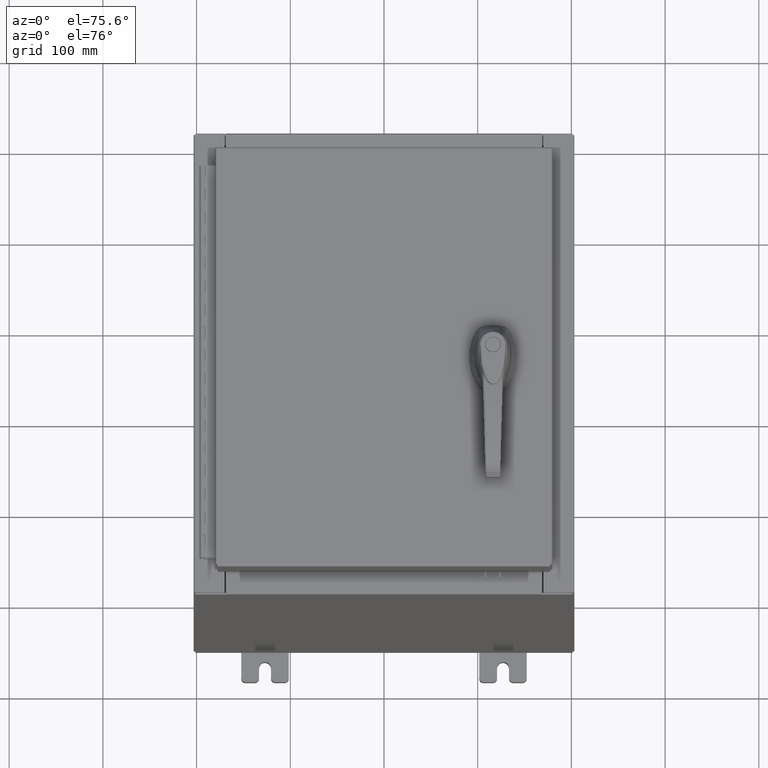
[diagram: clean part render]
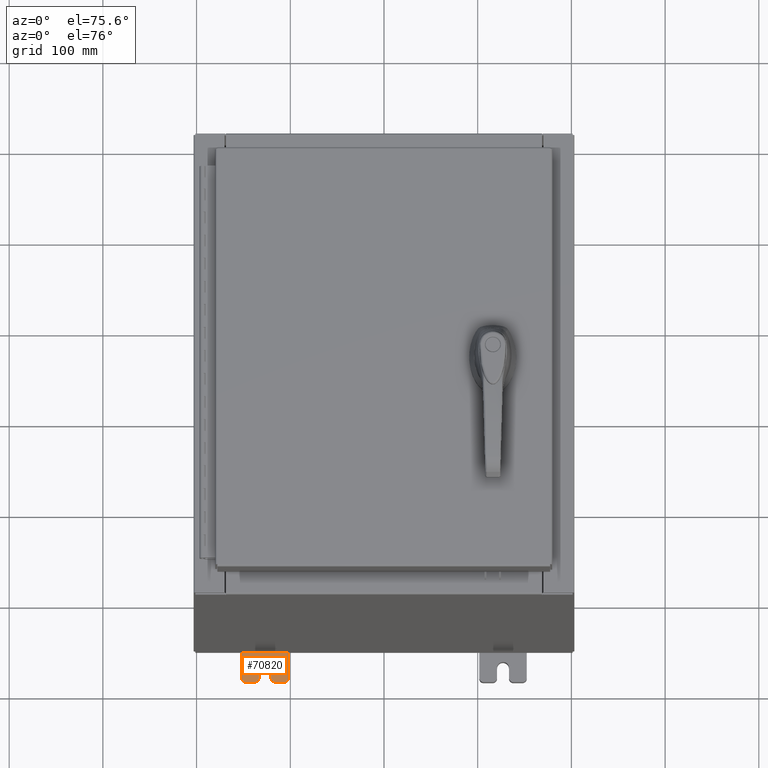
[diagram: same view with one face highlighted and labeled with its STEP entity id]
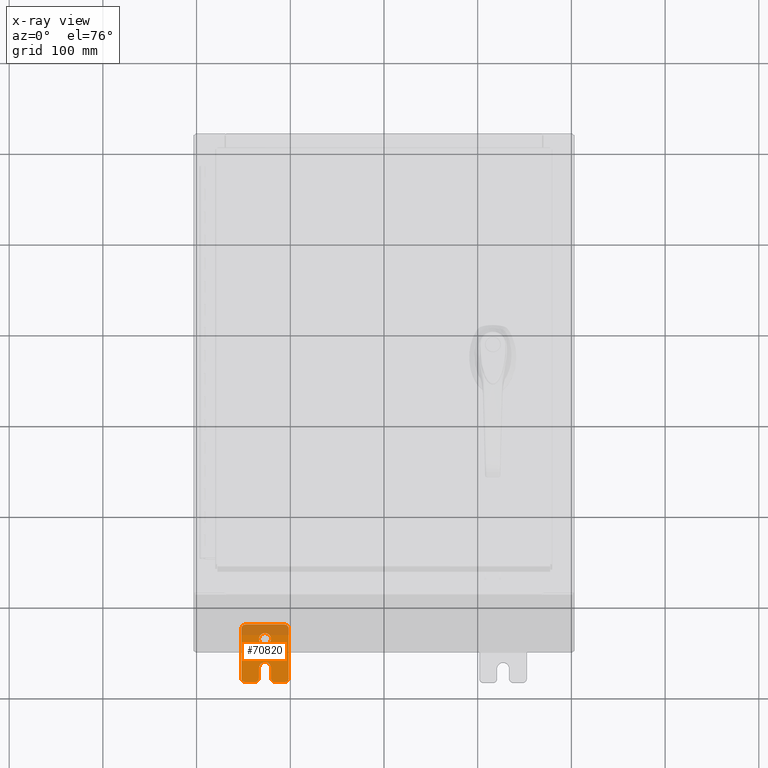
[diagram: x-ray of the same camera — body ghosted, the highlighted face saturated]
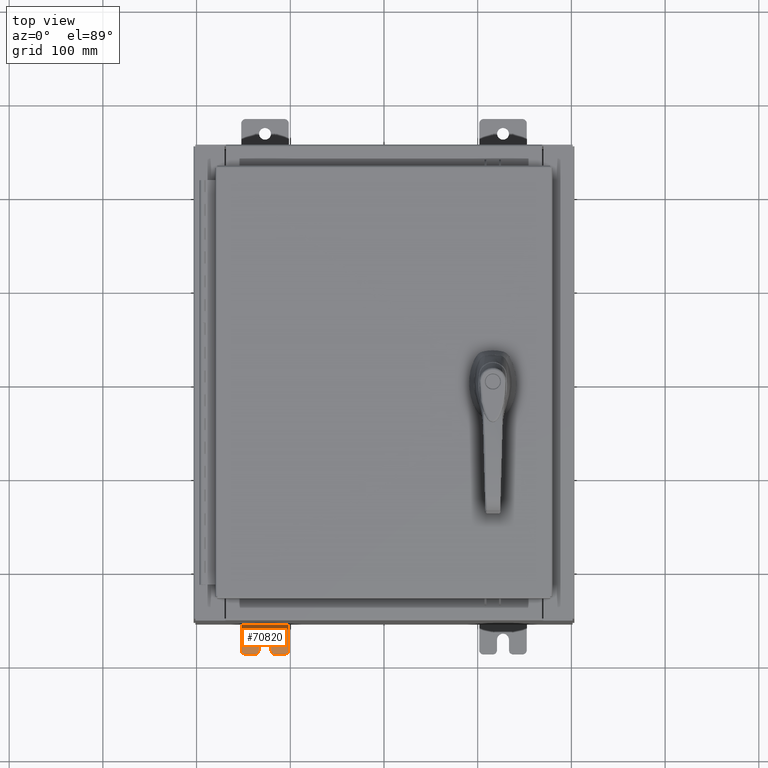
[diagram: same view with one face highlighted and labeled with its STEP entity id]
A machine part, auxiliary view. The second image highlights one B-rep face of the part: STEP entity #70820.
The next image is the same camera in x-ray: the body ghosted, the highlighted face saturated — about 20% of this face is hidden behind the body in this view.
A second angle (top view) of the same face is appended — the face is thin or edge-on in the first view.
In plain terms, the highlighted planar face has unit normal (0, 0, 1).
Its self-contained STEP definition (entity closure, byte-faithful):
#1039 = CARTESIAN_POINT ( 'NONE',  ( 0.0000000000000000000, -1.060000000000002100, 0.4400000000000016700 ) ) ;
#3020 = ORIENTED_EDGE ( 'NONE', *, *, #78802, .T. ) ;
#3696 = AXIS2_PLACEMENT_3D ( 'NONE', #87433, #36364, #96007 ) ;
#3768 = ORIENTED_EDGE ( 'NONE', *, *, #4987, .T. ) ;
#3808 = EDGE_CURVE ( 'NONE', #20745, #4893, #26907, .T. ) ;
#4068 = ORIENTED_EDGE ( 'NONE', *, *, #41762, .T. ) ;
#4342 = FACE_OUTER_BOUND ( 'NONE', #9734, .T. ) ;
#4583 = VERTEX_POINT ( 'NONE', #35247 ) ;
#4893 = VERTEX_POINT ( 'NONE', #58958 ) ;
#4987 = EDGE_CURVE ( 'NONE', #4583, #56472, #81415, .T. ) ;
#6508 = ORIENTED_EDGE ( 'NONE', *, *, #59576, .T. ) ;
#6839 = AXIS2_PLACEMENT_3D ( 'NONE', #1039, #60697, #9682 ) ;
#7004 = DIRECTION ( 'NONE',  ( 0.0000000000000000000, 0.0000000000000000000, -1.000000000000000000 ) ) ;
#8256 = EDGE_LOOP ( 'NONE', ( #89296, #68915 ) ) ;
#9054 = CARTESIAN_POINT ( 'NONE',  ( 0.0000000000000000000, 1.249999999999994700, -0.8100000000000092700 ) ) ;
#9682 = DIRECTION ( 'NONE',  ( 0.0000000000000000000, 0.0000000000000000000, -1.000000000000000000 ) ) ;
#9734 = EDGE_LOOP ( 'NONE', ( #20002, #89200, #44804, #30300, #6508, #33242, #85507, #38736, #3020, #83663, #103645, #3768, #108883, #4068 ) ) ;
#9806 = CARTESIAN_POINT ( 'NONE',  ( 0.0000000000000000000, -1.060000000000004100, -0.8100000000000050500 ) ) ;
#14124 = CARTESIAN_POINT ( 'NONE',  ( 4.780733988912460100E-016, -0.6249999999999993300, -0.2499999999999993900 ) ) ;
#14417 = CARTESIAN_POINT ( 'NONE',  ( 0.0000000000000000000, -1.250000000000005600, -1.000000000000006200 ) ) ;
#14798 = CIRCLE ( 'NONE', #47043, 0.1900000000000011100 ) ;
#17651 = EDGE_CURVE ( 'NONE', #72877, #72840, #43533, .T. ) ;
#17746 = CARTESIAN_POINT ( 'NONE',  ( 0.0000000000000000000, 1.249999999999997600, 0.9999999999999951200 ) ) ;
#18435 = DIRECTION ( 'NONE',  ( 0.0000000000000000000, 0.0000000000000000000, -1.000000000000000000 ) ) ;
#18784 = EDGE_CURVE ( 'NONE', #83313, #49658, #88765, .T. ) ;
#19538 = VECTOR ( 'NONE', #86620, 39.37007874015748100 ) ;
#20002 = ORIENTED_EDGE ( 'NONE', *, *, #29836, .T. ) ;
#20745 = VERTEX_POINT ( 'NONE', #75038 ) ;
#20774 = CARTESIAN_POINT ( 'NONE',  ( 0.0000000000000000000, 1.249999999999997300, 0.8099999999999935000 ) ) ;
#22625 = CARTESIAN_POINT ( 'NONE',  ( 3.910348609313009100E-016, 0.6249999999999992200, -0.2499999999999999200 ) ) ;
#24008 = CARTESIAN_POINT ( 'NONE',  ( 0.0000000000000000000, -0.6249999999999992200, 0.2500000000000005000 ) ) ;
#24141 = EDGE_CURVE ( 'NONE', #72840, #4583, #107209, .T. ) ;
#24787 = VERTEX_POINT ( 'NONE', #74710 ) ;
#24954 = CARTESIAN_POINT ( 'NONE',  ( 0.0000000000000000000, 1.059999999999993600, -0.8100000000000089400 ) ) ;
#25074 = DIRECTION ( 'NONE',  ( 1.000000000000000000, -0.0000000000000000000, -5.163192708025532000E-017 ) ) ;
#26907 = CIRCLE ( 'NONE', #61364, 0.1900000000000011100 ) ;
#27917 = EDGE_CURVE ( 'NONE', #108738, #97784, #98726, .T. ) ;
#29836 = EDGE_CURVE ( 'NONE', #24787, #20745, #38518, .T. ) ;
#29892 = AXIS2_PLACEMENT_3D ( 'NONE', #100700, #109311, #58170 ) ;
#30300 = ORIENTED_EDGE ( 'NONE', *, *, #67045, .T. ) ;
#31686 = DIRECTION ( 'NONE',  ( 6.556435184794182400E-016, 1.000000000000000000, 0.0000000000000000000 ) ) ;
#33242 = ORIENTED_EDGE ( 'NONE', *, *, #56276, .T. ) ;
#33519 = DIRECTION ( 'NONE',  ( 0.0000000000000000000, 0.0000000000000000000, -1.000000000000000000 ) ) ;
#34699 = CARTESIAN_POINT ( 'NONE',  ( 0.0000000000000000000, -1.250000000000002200, 0.9999999999999992200 ) ) ;
#35247 = CARTESIAN_POINT ( 'NONE',  ( 0.0000000000000000000, 1.059999999999993400, -1.000000000000010000 ) ) ;
#35589 = CARTESIAN_POINT ( 'NONE',  ( 0.0000000000000000000, -1.060000000000003400, -0.4400000000000005000 ) ) ;
#36364 = DIRECTION ( 'NONE',  ( 1.000000000000000000, -0.0000000000000000000, -5.163192708025532000E-017 ) ) ;
#36482 = VECTOR ( 'NONE', #48337, 39.37007874015748100 ) ;
#38518 = LINE ( 'NONE', #17746, #61151 ) ;
#38736 = ORIENTED_EDGE ( 'NONE', *, *, #86186, .T. ) ;
#41055 = PLANE ( 'NONE',  #29892 ) ;
#41725 = CARTESIAN_POINT ( 'NONE',  ( 0.0000000000000000000, 1.059999999999996300, 0.8099999999999938400 ) ) ;
#41762 = EDGE_CURVE ( 'NONE', #94328, #24787, #74423, .T. ) ;
#43262 = EDGE_CURVE ( 'NONE', #97784, #108738, #92951, .T. ) ;
#43533 = CIRCLE ( 'NONE', #54861, 0.1900000000000011100 ) ;
#43629 = AXIS2_PLACEMENT_3D ( 'NONE', #24954, #84567, #33519 ) ;
#44174 = DIRECTION ( 'NONE',  ( 0.0000000000000000000, 0.0000000000000000000, -1.000000000000000000 ) ) ;
#44804 = ORIENTED_EDGE ( 'NONE', *, *, #51923, .T. ) ;
#47043 = AXIS2_PLACEMENT_3D ( 'NONE', #35589, #95228, #44174 ) ;
#48337 = DIRECTION ( 'NONE',  ( 0.0000000000000000000, 1.000000000000000000, -1.639108796198558100E-015 ) ) ;
#48808 = CARTESIAN_POINT ( 'NONE',  ( 6.829619984160658000E-017, -1.250000000000003800, 0.2500000000000005000 ) ) ;
#49658 = VERTEX_POINT ( 'NONE', #87773 ) ;
#50047 = CARTESIAN_POINT ( 'NONE',  ( 4.780733988912460100E-016, -0.6249999999999993300, 5.858939755051854500E-017 ) ) ;
#50282 = DIRECTION ( 'NONE',  ( 0.0000000000000000000, 0.0000000000000000000, -1.000000000000000000 ) ) ;
#51923 = EDGE_CURVE ( 'NONE', #4893, #65295, #61498, .T. ) ;
#51989 = CARTESIAN_POINT ( 'NONE',  ( 0.0000000000000000000, -1.250000000000003100, 0.4400000000000020000 ) ) ;
#54861 = AXIS2_PLACEMENT_3D ( 'NONE', #9806, #69431, #18435 ) ;
#56134 = VECTOR ( 'NONE', #106029, 39.37007874015748100 ) ;
#56276 = EDGE_CURVE ( 'NONE', #100319, #83313, #63648, .T. ) ;
#56432 = AXIS2_PLACEMENT_3D ( 'NONE', #41725, #101406, #50282 ) ;
#56472 = VERTEX_POINT ( 'NONE', #9054 ) ;
#57004 = CARTESIAN_POINT ( 'NONE',  ( 4.780733988912460100E-016, -0.6249999999999993300, -0.2499999999999998600 ) ) ;
#58170 = DIRECTION ( 'NONE',  ( -0.0000000000000000000, 0.0000000000000000000, -1.000000000000000000 ) ) ;
#58626 = DIRECTION ( 'NONE',  ( -6.523827964459551700E-016, -1.000000000000000000, 0.0000000000000000000 ) ) ;
#58958 = CARTESIAN_POINT ( 'NONE',  ( 0.0000000000000000000, -1.250000000000002400, 0.8099999999999980500 ) ) ;
#59576 = EDGE_CURVE ( 'NONE', #96191, #100319, #104694, .T. ) ;
#60434 = CARTESIAN_POINT ( 'NONE',  ( 1.928684683526972300E-016, -1.060000000000002100, 0.2500000000000005000 ) ) ;
#60697 = DIRECTION ( 'NONE',  ( 1.000000000000000000, 0.0000000000000000000, -0.0000000000000000000 ) ) ;
#61151 = VECTOR ( 'NONE', #68721, 39.37007874015748100 ) ;
#61364 = AXIS2_PLACEMENT_3D ( 'NONE', #74661, #78158, #7004 ) ;
#61498 = LINE ( 'NONE', #97420, #56134 ) ;
#61541 = CARTESIAN_POINT ( 'NONE',  ( 4.168508244714285900E-016, 0.6249999999999992200, 0.2499999999999999200 ) ) ;
#62113 = VECTOR ( 'NONE', #68196, 39.37007874015748100 ) ;
#62694 = VERTEX_POINT ( 'NONE', #67522 ) ;
#63298 = CARTESIAN_POINT ( 'NONE',  ( 0.0000000000000000000, -1.060000000000004500, -1.000000000000006400 ) ) ;
#63648 = CIRCLE ( 'NONE', #80680, 0.2499999999999999200 ) ;
#65295 = VERTEX_POINT ( 'NONE', #51989 ) ;
#67045 = EDGE_CURVE ( 'NONE', #65295, #96191, #75490, .T. ) ;
#67522 = CARTESIAN_POINT ( 'NONE',  ( 0.0000000000000000000, -1.250000000000004700, -0.4400000000000002200 ) ) ;
#68196 = DIRECTION ( 'NONE',  ( 0.0000000000000000000, -1.639108796198553600E-015, -1.000000000000000000 ) ) ;
#68721 = DIRECTION ( 'NONE',  ( 0.0000000000000000000, -1.000000000000000000, 1.639108796198558100E-015 ) ) ;
#68915 = ORIENTED_EDGE ( 'NONE', *, *, #43262, .F. ) ;
#69431 = DIRECTION ( 'NONE',  ( 1.000000000000000000, 0.0000000000000000000, -0.0000000000000000000 ) ) ;
#70820 = ADVANCED_FACE ( 'NONE', ( #109810, #4342 ), #41055, .T. ) ;
#71898 = CARTESIAN_POINT ( 'NONE',  ( 0.0000000000000000000, -1.250000000000005300, -0.8100000000000047200 ) ) ;
#72840 = VERTEX_POINT ( 'NONE', #63298 ) ;
#72877 = VERTEX_POINT ( 'NONE', #71898 ) ;
#74423 = CIRCLE ( 'NONE', #56432, 0.1900000000000011100 ) ;
#74661 = CARTESIAN_POINT ( 'NONE',  ( 0.0000000000000000000, -1.060000000000001600, 0.8099999999999978300 ) ) ;
#74710 = CARTESIAN_POINT ( 'NONE',  ( 0.0000000000000000000, 1.059999999999996500, 0.9999999999999953400 ) ) ;
#75038 = CARTESIAN_POINT ( 'NONE',  ( 0.0000000000000000000, -1.060000000000001200, 0.9999999999999988900 ) ) ;
#75490 = CIRCLE ( 'NONE', #6839, 0.1900000000000011400 ) ;
#76105 = CARTESIAN_POINT ( 'NONE',  ( 4.039428427013647300E-016, 0.6249999999999992200, -9.783840404509077400E-018 ) ) ;
#78005 = CARTESIAN_POINT ( 'NONE',  ( 0.0000000000000000000, 1.249999999999994200, -1.000000000000010400 ) ) ;
#78041 = VECTOR ( 'NONE', #82350, 39.37007874015748100 ) ;
#78158 = DIRECTION ( 'NONE',  ( 1.000000000000000000, 0.0000000000000000000, -0.0000000000000000000 ) ) ;
#78802 = EDGE_CURVE ( 'NONE', #62694, #72877, #107559, .T. ) ;
#80680 = AXIS2_PLACEMENT_3D ( 'NONE', #50047, #109762, #58626 ) ;
#81415 = CIRCLE ( 'NONE', #43629, 0.1900000000000011100 ) ;
#82350 = DIRECTION ( 'NONE',  ( -6.556435184794182400E-016, -1.000000000000000000, -1.639108796198545600E-016 ) ) ;
#83313 = VERTEX_POINT ( 'NONE', #57004 ) ;
#83663 = ORIENTED_EDGE ( 'NONE', *, *, #17651, .T. ) ;
#84567 = DIRECTION ( 'NONE',  ( 1.000000000000000000, 0.0000000000000000000, -0.0000000000000000000 ) ) ;
#84675 = DIRECTION ( 'NONE',  ( -5.163192708025533800E-017, 0.0000000000000000000, -1.000000000000000000 ) ) ;
#85507 = ORIENTED_EDGE ( 'NONE', *, *, #18784, .T. ) ;
#86186 = EDGE_CURVE ( 'NONE', #49658, #62694, #14798, .T. ) ;
#86620 = DIRECTION ( 'NONE',  ( 0.0000000000000000000, 1.639108796198553600E-015, 1.000000000000000000 ) ) ;
#87433 = CARTESIAN_POINT ( 'NONE',  ( 4.039428427013647300E-016, 0.6249999999999992200, -9.783840404509077400E-018 ) ) ;
#87565 = LINE ( 'NONE', #78005, #19538 ) ;
#87773 = CARTESIAN_POINT ( 'NONE',  ( 1.928684683526964400E-016, -1.060000000000003400, -0.2499999999999994400 ) ) ;
#88765 = LINE ( 'NONE', #14124, #78041 ) ;
#89200 = ORIENTED_EDGE ( 'NONE', *, *, #3808, .T. ) ;
#89296 = ORIENTED_EDGE ( 'NONE', *, *, #27917, .F. ) ;
#91621 = AXIS2_PLACEMENT_3D ( 'NONE', #76105, #25074, #84675 ) ;
#92951 = CIRCLE ( 'NONE', #91621, 0.2499999999999999200 ) ;
#94328 = VERTEX_POINT ( 'NONE', #20774 ) ;
#95228 = DIRECTION ( 'NONE',  ( 1.000000000000000000, 0.0000000000000000000, -0.0000000000000000000 ) ) ;
#96007 = DIRECTION ( 'NONE',  ( -5.163192708025533800E-017, 0.0000000000000000000, -1.000000000000000000 ) ) ;
#96191 = VERTEX_POINT ( 'NONE', #60434 ) ;
#97420 = CARTESIAN_POINT ( 'NONE',  ( 0.0000000000000000000, -1.250000000000002200, 0.9999999999999992200 ) ) ;
#97784 = VERTEX_POINT ( 'NONE', #61541 ) ;
#98726 = CIRCLE ( 'NONE', #3696, 0.2499999999999999200 ) ;
#100319 = VERTEX_POINT ( 'NONE', #24008 ) ;
#100700 = CARTESIAN_POINT ( 'NONE',  ( 0.0000000000000000000, 0.0000000000000000000, 0.0000000000000000000 ) ) ;
#100927 = EDGE_CURVE ( 'NONE', #56472, #94328, #87565, .T. ) ;
#101406 = DIRECTION ( 'NONE',  ( 1.000000000000000000, 0.0000000000000000000, -0.0000000000000000000 ) ) ;
#102013 = VECTOR ( 'NONE', #31686, 39.37007874015748100 ) ;
#103645 = ORIENTED_EDGE ( 'NONE', *, *, #24141, .T. ) ;
#104694 = LINE ( 'NONE', #48808, #102013 ) ;
#106029 = DIRECTION ( 'NONE',  ( 0.0000000000000000000, -1.639108796198553600E-015, -1.000000000000000000 ) ) ;
#107209 = LINE ( 'NONE', #14417, #36482 ) ;
#107559 = LINE ( 'NONE', #34699, #62113 ) ;
#108738 = VERTEX_POINT ( 'NONE', #22625 ) ;
#108883 = ORIENTED_EDGE ( 'NONE', *, *, #100927, .T. ) ;
#109311 = DIRECTION ( 'NONE',  ( 1.000000000000000000, 0.0000000000000000000, -0.0000000000000000000 ) ) ;
#109762 = DIRECTION ( 'NONE',  ( -1.000000000000000000, 6.523827964459549700E-016, 5.163192708025532000E-017 ) ) ;
#109810 = FACE_BOUND ( 'NONE', #8256, .T. ) ;